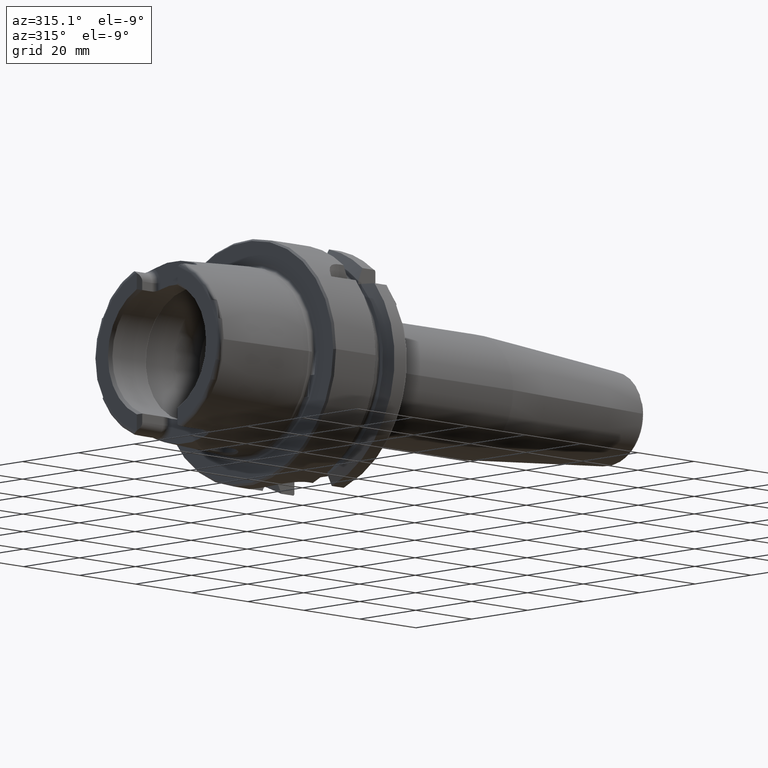
[diagram: clean part render]
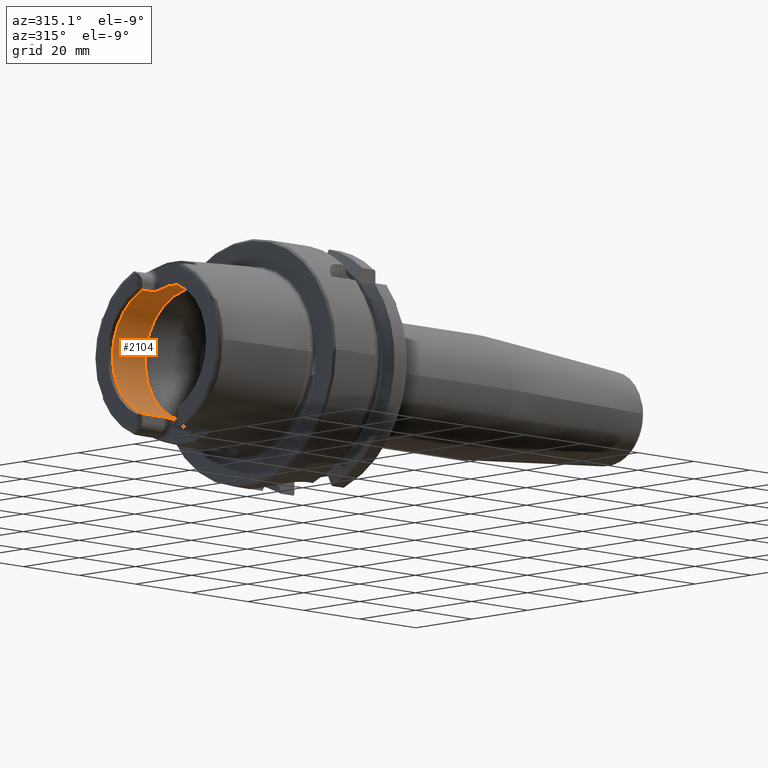
[diagram: same view with one face highlighted and labeled with its STEP entity id]
A machine part, auxiliary view. The second image highlights one B-rep face of the part: STEP entity #2104.
In plain terms, the highlighted cylindrical surface (bore or boss wall) has radius 17 mm, axis along (-1, 0, 0).
Its self-contained STEP definition (entity closure, byte-faithful):
#85=B_SPLINE_CURVE_WITH_KNOTS('',3,(#4352,#4353,#4354,#4355,#4356,#4357,
#4358,#4359,#4360,#4361),.UNSPECIFIED.,.F.,.F.,(4,2,2,2,4),(0.229569660485746,
0.289239803007022,0.348909945528297,0.405407845050218,0.46190574457214),
 .UNSPECIFIED.);
#86=B_SPLINE_CURVE_WITH_KNOTS('',3,(#4370,#4371,#4372,#4373,#4374,#4375,
#4376,#4377,#4378,#4379),.UNSPECIFIED.,.F.,.F.,(4,2,2,2,4),(0.46190574457214,
0.519239917776744,0.576574090981348,0.635410522815223,0.694246954649097),
 .UNSPECIFIED.);
#87=B_SPLINE_CURVE_WITH_KNOTS('',3,(#4388,#4389,#4390,#4391,#4392,#4393,
#4394,#4395,#4396,#4397),.UNSPECIFIED.,.F.,.F.,(4,2,2,2,4),(0.461905744572139,
0.518403644094061,0.574901543615982,0.634571686137257,0.694241828658533),
 .UNSPECIFIED.);
#88=B_SPLINE_CURVE_WITH_KNOTS('',3,(#4411,#4412,#4413,#4414,#4415,#4416,
#4417,#4418,#4419,#4420),.UNSPECIFIED.,.F.,.F.,(4,2,2,2,4),(0.229569660485747,
0.289239803007022,0.348909945528297,0.405407845050218,0.46190574457214),
 .UNSPECIFIED.);
#209=CYLINDRICAL_SURFACE('',#2354,17.);
#311=FACE_OUTER_BOUND('',#441,.T.);
#441=EDGE_LOOP('',(#1871,#1872,#1873,#1874,#1875,#1876,#1877,#1878,#1879,
#1880,#1881,#1882,#1883,#1884,#1885,#1886,#1887));
#492=LINE('',#3191,#602);
#498=LINE('',#3207,#608);
#504=LINE('',#3262,#614);
#508=LINE('',#3328,#618);
#570=LINE('',#4435,#680);
#602=VECTOR('',#2542,10.);
#608=VECTOR('',#2556,10.);
#614=VECTOR('',#2578,10.);
#618=VECTOR('',#2602,10.);
#680=VECTOR('',#2922,17.);
#781=CIRCLE('',#2342,17.);
#786=CIRCLE('',#2353,17.);
#787=CIRCLE('',#2355,17.);
#788=CIRCLE('',#2356,17.);
#789=CIRCLE('',#2357,17.);
#790=CIRCLE('',#2358,17.);
#791=CIRCLE('',#2359,17.);
#856=VERTEX_POINT('',#3144);
#863=VERTEX_POINT('',#3190);
#866=VERTEX_POINT('',#3197);
#869=VERTEX_POINT('',#3205);
#877=VERTEX_POINT('',#3252);
#880=VERTEX_POINT('',#3260);
#887=VERTEX_POINT('',#3295);
#892=VERTEX_POINT('',#3327);
#999=VERTEX_POINT('',#4350);
#1001=VERTEX_POINT('',#4369);
#1003=VERTEX_POINT('',#4387);
#1004=VERTEX_POINT('',#4404);
#1006=VERTEX_POINT('',#4431);
#1007=VERTEX_POINT('',#4432);
#1008=VERTEX_POINT('',#4434);
#1085=EDGE_CURVE('',#863,#856,#492,.T.);
#1093=EDGE_CURVE('',#866,#869,#498,.T.);
#1106=EDGE_CURVE('',#877,#880,#504,.T.);
#1120=EDGE_CURVE('',#892,#887,#508,.T.);
#1286=EDGE_CURVE('',#999,#880,#85,.T.);
#1290=EDGE_CURVE('',#892,#1001,#86,.T.);
#1295=EDGE_CURVE('',#863,#1003,#87,.T.);
#1299=EDGE_CURVE('',#1004,#1003,#781,.T.);
#1303=EDGE_CURVE('',#1004,#869,#88,.T.);
#1307=EDGE_CURVE('',#999,#1001,#786,.T.);
#1308=EDGE_CURVE('',#1006,#1007,#787,.T.);
#1309=EDGE_CURVE('',#1006,#1008,#570,.T.);
#1310=EDGE_CURVE('',#877,#1008,#788,.T.);
#1311=EDGE_CURVE('',#866,#887,#789,.T.);
#1312=EDGE_CURVE('',#1008,#856,#790,.T.);
#1313=EDGE_CURVE('',#1007,#1006,#791,.T.);
#1871=ORIENTED_EDGE('',*,*,#1308,.F.);
#1872=ORIENTED_EDGE('',*,*,#1309,.T.);
#1873=ORIENTED_EDGE('',*,*,#1310,.F.);
#1874=ORIENTED_EDGE('',*,*,#1106,.T.);
#1875=ORIENTED_EDGE('',*,*,#1286,.F.);
#1876=ORIENTED_EDGE('',*,*,#1307,.T.);
#1877=ORIENTED_EDGE('',*,*,#1290,.F.);
#1878=ORIENTED_EDGE('',*,*,#1120,.T.);
#1879=ORIENTED_EDGE('',*,*,#1311,.F.);
#1880=ORIENTED_EDGE('',*,*,#1093,.T.);
#1881=ORIENTED_EDGE('',*,*,#1303,.F.);
#1882=ORIENTED_EDGE('',*,*,#1299,.T.);
#1883=ORIENTED_EDGE('',*,*,#1295,.F.);
#1884=ORIENTED_EDGE('',*,*,#1085,.T.);
#1885=ORIENTED_EDGE('',*,*,#1312,.F.);
#1886=ORIENTED_EDGE('',*,*,#1309,.F.);
#1887=ORIENTED_EDGE('',*,*,#1313,.F.);
#2104=ADVANCED_FACE('',(#311),#209,.F.);
#2342=AXIS2_PLACEMENT_3D('',#4405,#2892,#2893);
#2353=AXIS2_PLACEMENT_3D('',#4429,#2916,#2917);
#2354=AXIS2_PLACEMENT_3D('',#4430,#2918,#2919);
#2355=AXIS2_PLACEMENT_3D('',#4433,#2920,#2921);
#2356=AXIS2_PLACEMENT_3D('',#4436,#2923,#2924);
#2357=AXIS2_PLACEMENT_3D('',#4437,#2925,#2926);
#2358=AXIS2_PLACEMENT_3D('',#4438,#2927,#2928);
#2359=AXIS2_PLACEMENT_3D('',#4439,#2929,#2930);
#2542=DIRECTION('',(-1.,0.,0.));
#2556=DIRECTION('',(1.,0.,0.));
#2578=DIRECTION('',(1.,0.,0.));
#2602=DIRECTION('',(-1.,0.,0.));
#2892=DIRECTION('center_axis',(-1.,0.,0.));
#2893=DIRECTION('ref_axis',(0.,1.,0.));
#2916=DIRECTION('center_axis',(-1.,0.,0.));
#2917=DIRECTION('ref_axis',(0.,1.,0.));
#2918=DIRECTION('center_axis',(-1.,0.,0.));
#2919=DIRECTION('ref_axis',(0.,1.,0.));
#2920=DIRECTION('center_axis',(-1.,0.,0.));
#2921=DIRECTION('ref_axis',(0.,0.,1.));
#2922=DIRECTION('',(-1.,0.,0.));
#2923=DIRECTION('center_axis',(1.,0.,0.));
#2924=DIRECTION('ref_axis',(0.,-1.,0.));
#2925=DIRECTION('center_axis',(1.,0.,0.));
#2926=DIRECTION('ref_axis',(0.,-1.,0.));
#2927=DIRECTION('center_axis',(1.,0.,0.));
#2928=DIRECTION('ref_axis',(0.,-1.,0.));
#2929=DIRECTION('center_axis',(-1.,0.,0.));
#2930=DIRECTION('ref_axis',(0.,0.,1.));
#3144=CARTESIAN_POINT('',(-31.,-6.27,-15.8014904360317));
#3190=CARTESIAN_POINT('',(-23.5,-6.27,-15.8014904360317));
#3191=CARTESIAN_POINT('',(-25.6423502691896,-6.27,-15.8014904360317));
#3197=CARTESIAN_POINT('',(-31.,6.27,-15.8014904360317));
#3205=CARTESIAN_POINT('',(-23.5,6.27,-15.8014904360317));
#3207=CARTESIAN_POINT('',(-25.6423502691896,6.27,-15.8014904360317));
#3252=CARTESIAN_POINT('',(-31.,-6.27,15.8014904360317));
#3260=CARTESIAN_POINT('',(-27.5,-6.27,15.8014904360317));
#3262=CARTESIAN_POINT('',(-25.6423502691896,-6.27,15.8014904360317));
#3295=CARTESIAN_POINT('',(-31.,6.27,15.8014904360317));
#3327=CARTESIAN_POINT('',(-27.5,6.27,15.8014904360317));
#3328=CARTESIAN_POINT('',(-25.6423502691896,6.27,15.8014904360317));
#4350=CARTESIAN_POINT('',(-26.,-4.77,16.3170800083839));
#4352=CARTESIAN_POINT('Ctrl Pts',(-26.,-4.77,16.3170800083839));
#4353=CARTESIAN_POINT('Ctrl Pts',(-26.,-4.96091029208457,16.2612708750845));
#4354=CARTESIAN_POINT('Ctrl Pts',(-26.0385404635846,-5.16378617408596,16.1979610859593));
#4355=CARTESIAN_POINT('Ctrl Pts',(-26.1950909803916,-5.53690543536203,16.0742436586733));
#4356=CARTESIAN_POINT('Ctrl Pts',(-26.3130861154278,-5.70721093092864,16.01400454532));
#4357=CARTESIAN_POINT('Ctrl Pts',(-26.5811791540138,-5.96960590306613,15.9179857910505));
#4358=CARTESIAN_POINT('Ctrl Pts',(-26.7467155703026,-6.082078486584,15.8749745356799));
#4359=CARTESIAN_POINT('Ctrl Pts',(-27.1119229195206,-6.23232125085234,15.8165946761251));
#4360=CARTESIAN_POINT('Ctrl Pts',(-27.3116736682603,-6.27,15.8014904360317));
#4361=CARTESIAN_POINT('Ctrl Pts',(-27.5,-6.27,15.8014904360317));
#4369=CARTESIAN_POINT('',(-26.,4.77,16.3170800083839));
#4370=CARTESIAN_POINT('Ctrl Pts',(-27.5,6.27,15.8014904360317));
#4371=CARTESIAN_POINT('Ctrl Pts',(-27.308886089318,6.27,15.8014904360317));
#4372=CARTESIAN_POINT('Ctrl Pts',(-27.1064099842243,6.23121026569193,15.8170435837256));
#4373=CARTESIAN_POINT('Ctrl Pts',(-26.7371019784685,6.07691823919465,15.8769617281184));
#4374=CARTESIAN_POINT('Ctrl Pts',(-26.5701870418163,5.96150738537594,15.9210500039306));
#4375=CARTESIAN_POINT('Ctrl Pts',(-26.3050641818979,5.69638452545756,16.017853695422));
#4376=CARTESIAN_POINT('Ctrl Pts',(-26.1900212186221,5.52750941197086,16.0774506535614));
#4377=CARTESIAN_POINT('Ctrl Pts',(-26.0374824299787,5.15846789211413,16.1996292802954));
#4378=CARTESIAN_POINT('Ctrl Pts',(-26.,4.95824289522375,16.2620506397863));
#4379=CARTESIAN_POINT('Ctrl Pts',(-26.,4.77,16.3170800083839));
#4387=CARTESIAN_POINT('',(-22.,-4.77,-16.3170800083839));
#4388=CARTESIAN_POINT('Ctrl Pts',(-23.5,-6.27,-15.8014904360317));
#4389=CARTESIAN_POINT('Ctrl Pts',(-23.3116736682603,-6.27,-15.8014904360317));
#4390=CARTESIAN_POINT('Ctrl Pts',(-23.1119229195206,-6.23232125085234,-15.8165946761251));
#4391=CARTESIAN_POINT('Ctrl Pts',(-22.7467155703026,-6.082078486584,-15.8749745356799));
#4392=CARTESIAN_POINT('Ctrl Pts',(-22.5811791540138,-5.96960590306613,-15.9179857910505));
#4393=CARTESIAN_POINT('Ctrl Pts',(-22.3130861154278,-5.70721093092864,-16.01400454532));
#4394=CARTESIAN_POINT('Ctrl Pts',(-22.1950909803916,-5.53690543536204,-16.0742436586733));
#4395=CARTESIAN_POINT('Ctrl Pts',(-22.0385404635846,-5.16378617408596,-16.1979610859593));
#4396=CARTESIAN_POINT('Ctrl Pts',(-22.,-4.96091029208457,-16.2612708750845));
#4397=CARTESIAN_POINT('Ctrl Pts',(-22.,-4.77,-16.3170800083839));
#4404=CARTESIAN_POINT('',(-22.,4.77,-16.3170800083839));
#4405=CARTESIAN_POINT('Origin',(-22.,0.,0.));
#4411=CARTESIAN_POINT('Ctrl Pts',(-22.,4.77,-16.3170800083839));
#4412=CARTESIAN_POINT('Ctrl Pts',(-22.,4.96091029208457,-16.2612708750845));
#4413=CARTESIAN_POINT('Ctrl Pts',(-22.0385404635846,5.16378617408596,-16.1979610859593));
#4414=CARTESIAN_POINT('Ctrl Pts',(-22.1950909803916,5.53690543536204,-16.0742436586733));
#4415=CARTESIAN_POINT('Ctrl Pts',(-22.3130861154278,5.70721093092864,-16.01400454532));
#4416=CARTESIAN_POINT('Ctrl Pts',(-22.5811791540138,5.96960590306613,-15.9179857910505));
#4417=CARTESIAN_POINT('Ctrl Pts',(-22.7467155703026,6.082078486584,-15.8749745356799));
#4418=CARTESIAN_POINT('Ctrl Pts',(-23.1119229195206,6.23232125085234,-15.8165946761251));
#4419=CARTESIAN_POINT('Ctrl Pts',(-23.3116736682603,6.27,-15.8014904360317));
#4420=CARTESIAN_POINT('Ctrl Pts',(-23.5,6.27,-15.8014904360317));
#4429=CARTESIAN_POINT('Origin',(-26.,0.,0.));
#4430=CARTESIAN_POINT('Origin',(-25.6423502691896,0.,0.));
#4431=CARTESIAN_POINT('',(-19.2847005383793,-17.,2.0818995585505E-15));
#4432=CARTESIAN_POINT('',(-19.2847005383793,-2.0818995585505E-15,-17.));
#4433=CARTESIAN_POINT('Origin',(-19.2847005383793,0.,0.));
#4434=CARTESIAN_POINT('',(-31.,-17.,2.0818995585505E-15));
#4435=CARTESIAN_POINT('',(-25.6423502691896,-17.,2.0818995585505E-15));
#4436=CARTESIAN_POINT('Origin',(-31.,0.,0.));
#4437=CARTESIAN_POINT('Origin',(-31.,0.,0.));
#4438=CARTESIAN_POINT('Origin',(-31.,0.,0.));
#4439=CARTESIAN_POINT('Origin',(-19.2847005383793,0.,0.));